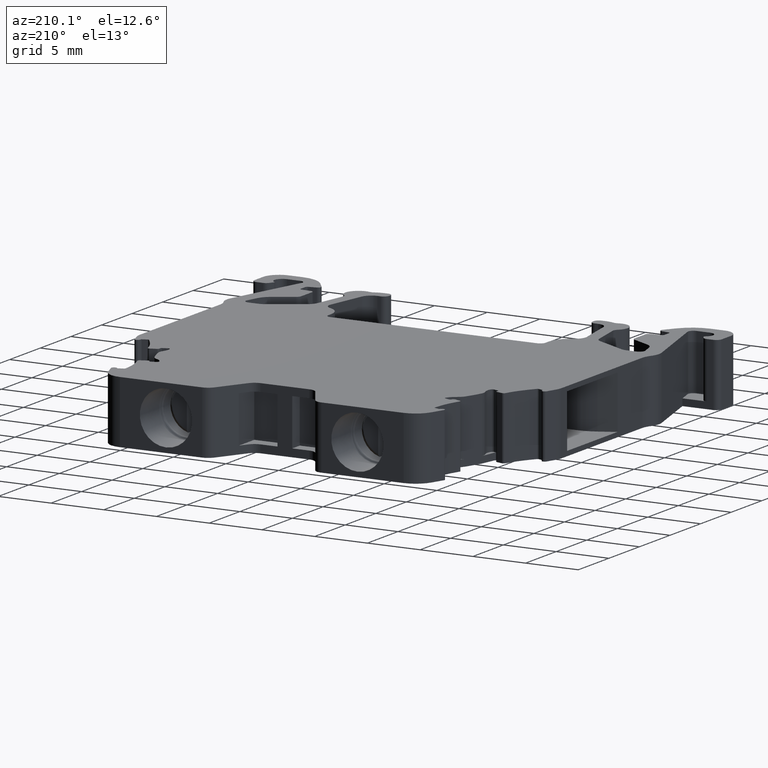
[diagram: clean part render]
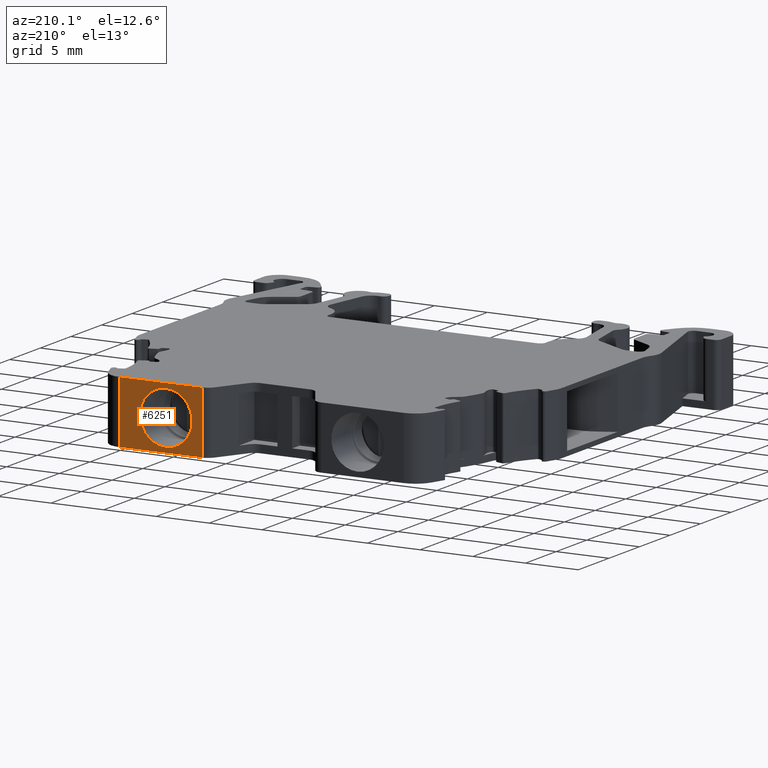
[diagram: same view with one face highlighted and labeled with its STEP entity id]
A machine part, auxiliary view. The second image highlights one B-rep face of the part: STEP entity #6251.
In plain terms, the highlighted planar face has unit normal (0, 1, 0).
Its self-contained STEP definition (entity closure, byte-faithful):
#1421 = VECTOR ( 'NONE', #9901, 1000.000000000000000 ) ;
#1446 = VECTOR ( 'NONE', #10158, 1000.000000000000000 ) ;
#1457 = VECTOR ( 'NONE', #10110, 1000.000000000000000 ) ;
#1583 = AXIS2_PLACEMENT_3D ( 'NONE', #9412, #9379, #9375 ) ;
#1835 = CIRCLE ( 'NONE', #1840, 2.482488710350061500 ) ;
#1840 = AXIS2_PLACEMENT_3D ( 'NONE', #2280, #2263, #2261 ) ;
#2261 = DIRECTION ( 'NONE',  ( 0.0000000000000000000, 0.0000000000000000000, 1.000000000000000000 ) ) ;
#2263 = DIRECTION ( 'NONE',  ( 0.0000000000000000000, -1.000000000000000000, -0.0000000000000000000 ) ) ;
#2280 = CARTESIAN_POINT ( 'NONE',  ( 1469.252770077745900, 957.4726163252194100, 0.0000000000000000000 ) ) ;
#2846 = CARTESIAN_POINT ( 'NONE',  ( 1469.252770077745900, 957.4726163252194100, 0.0000000000000000000 ) ) ;
#2847 = DIRECTION ( 'NONE',  ( 0.0000000000000000000, -1.000000000000000000, -0.0000000000000000000 ) ) ;
#2869 = DIRECTION ( 'NONE',  ( 0.0000000000000000000, 0.0000000000000000000, 1.000000000000000000 ) ) ;
#4535 = ORIENTED_EDGE ( 'NONE', *, *, #6643, .T. ) ;
#4571 = ORIENTED_EDGE ( 'NONE', *, *, #6509, .T. ) ;
#4672 = ORIENTED_EDGE ( 'NONE', *, *, #6165, .F. ) ;
#4676 = ORIENTED_EDGE ( 'NONE', *, *, #6177, .F. ) ;
#4758 = ORIENTED_EDGE ( 'NONE', *, *, #6843, .T. ) ;
#4760 = ORIENTED_EDGE ( 'NONE', *, *, #6103, .T. ) ;
#6103 = EDGE_CURVE ( 'NONE', #11904, #11807, #9900, .T. ) ;
#6165 = EDGE_CURVE ( 'NONE', #11904, #11921, #10124, .T. ) ;
#6177 = EDGE_CURVE ( 'NONE', #11921, #11762, #10193, .T. ) ;
#6251 = ADVANCED_FACE ( 'NONE', ( #9410, #9396 ), #9402, .T. ) ;
#6509 = EDGE_CURVE ( 'NONE', #10700, #10801, #1835, .T. ) ;
#6643 = EDGE_CURVE ( 'NONE', #10801, #10700, #10399, .T. ) ;
#6843 = EDGE_CURVE ( 'NONE', #11807, #11762, #7741, .T. ) ;
#7308 = CARTESIAN_POINT ( 'NONE',  ( 1469.252770077745900, 957.4726163252194100, 2.482488710350061500 ) ) ;
#7720 = CARTESIAN_POINT ( 'NONE',  ( 1471.260352861904300, 957.4726163252453300, 2.949999999999999700 ) ) ;
#7721 = DIRECTION ( 'NONE',  ( 1.000000000000000000, 0.0000000000000000000, -0.0000000000000000000 ) ) ;
#7741 = LINE ( 'NONE', #7720, #10659 ) ;
#8164 = CARTESIAN_POINT ( 'NONE',  ( 1473.620054528542600, 957.4726163252452100, 2.949999999999999700 ) ) ;
#8225 = CARTESIAN_POINT ( 'NONE',  ( 1465.826189503149900, 957.4726163252453300, 2.949999999999999700 ) ) ;
#8371 = CARTESIAN_POINT ( 'NONE',  ( 1473.620054528542600, 957.4726163252452100, -2.949999999999999300 ) ) ;
#8394 = CARTESIAN_POINT ( 'NONE',  ( 1465.826189503149900, 957.4726163252452100, -2.949999999999999300 ) ) ;
#8572 = CARTESIAN_POINT ( 'NONE',  ( 1469.252770077745900, 957.4726163252194100, -2.482488710350061500 ) ) ;
#9375 = DIRECTION ( 'NONE',  ( 0.0000000000000000000, -0.0000000000000000000, 1.000000000000000000 ) ) ;
#9379 = DIRECTION ( 'NONE',  ( 0.0000000000000000000, 1.000000000000000000, 0.0000000000000000000 ) ) ;
#9396 = FACE_OUTER_BOUND ( 'NONE', #11460, .T. ) ;
#9402 = PLANE ( 'NONE',  #1583 ) ;
#9410 = FACE_BOUND ( 'NONE', #11490, .T. ) ;
#9412 = CARTESIAN_POINT ( 'NONE',  ( 1471.260352861904300, 957.4726163252453300, 2.899999999999999900 ) ) ;
#9900 = LINE ( 'NONE', #9903, #1421 ) ;
#9901 = DIRECTION ( 'NONE',  ( 0.0000000000000000000, -0.0000000000000000000, 1.000000000000000000 ) ) ;
#9903 = CARTESIAN_POINT ( 'NONE',  ( 1465.826189503149900, 957.4726163252453300, 2.899999999999999900 ) ) ;
#10109 = CARTESIAN_POINT ( 'NONE',  ( 1443.419965517744000, 957.4726163252452100, -2.949999999999999700 ) ) ;
#10110 = DIRECTION ( 'NONE',  ( 1.000000000000000000, -0.0000000000000000000, 0.0000000000000000000 ) ) ;
#10124 = LINE ( 'NONE', #10109, #1457 ) ;
#10158 = DIRECTION ( 'NONE',  ( -0.0000000000000000000, -0.0000000000000000000, 1.000000000000000000 ) ) ;
#10176 = CARTESIAN_POINT ( 'NONE',  ( 1473.620054528542600, 957.4726163252452100, 2.899999999999999900 ) ) ;
#10193 = LINE ( 'NONE', #10176, #1446 ) ;
#10399 = CIRCLE ( 'NONE', #10516, 2.482488710350061500 ) ;
#10516 = AXIS2_PLACEMENT_3D ( 'NONE', #2846, #2847, #2869 ) ;
#10659 = VECTOR ( 'NONE', #7721, 1000.000000000000000 ) ;
#10700 = VERTEX_POINT ( 'NONE', #7308 ) ;
#10801 = VERTEX_POINT ( 'NONE', #8572 ) ;
#11460 = EDGE_LOOP ( 'NONE', ( #4676, #4672, #4760, #4758 ) ) ;
#11490 = EDGE_LOOP ( 'NONE', ( #4571, #4535 ) ) ;
#11762 = VERTEX_POINT ( 'NONE', #8164 ) ;
#11807 = VERTEX_POINT ( 'NONE', #8225 ) ;
#11904 = VERTEX_POINT ( 'NONE', #8394 ) ;
#11921 = VERTEX_POINT ( 'NONE', #8371 ) ;